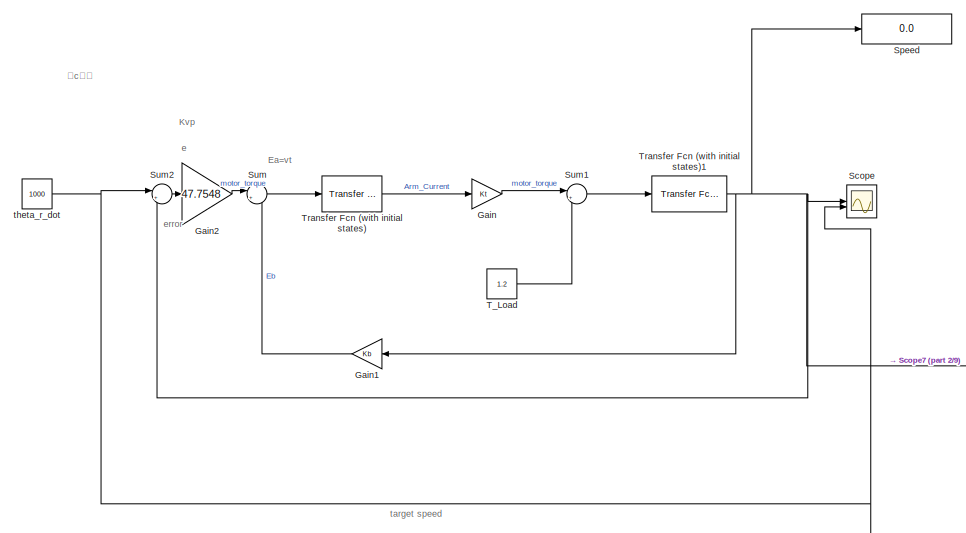
[diagram: root canvas - part 1/9, top left region]
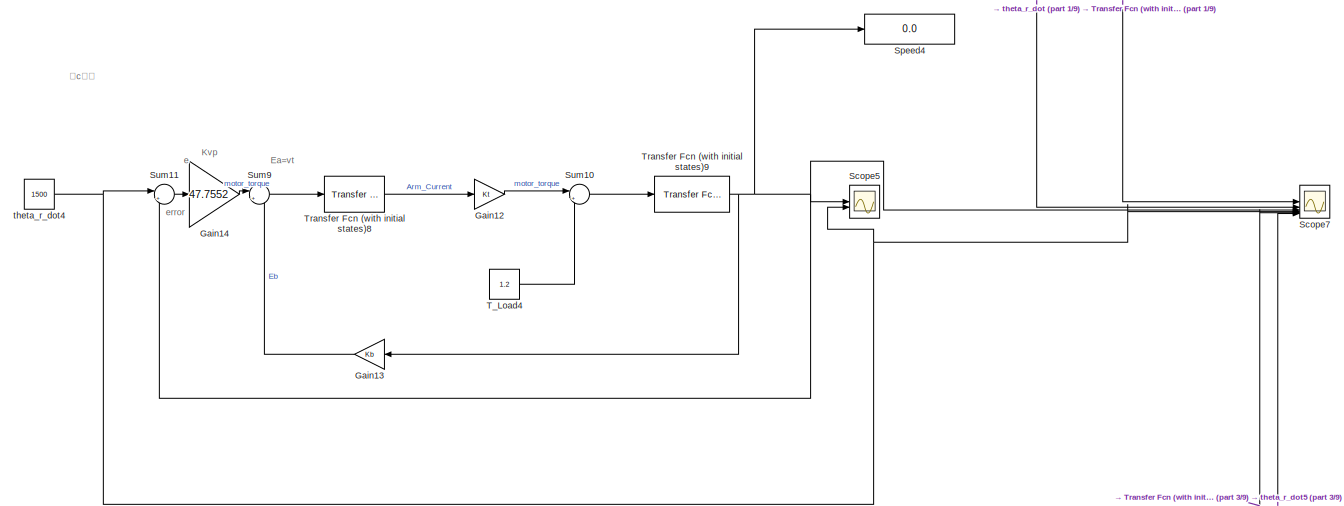
[diagram: root canvas - part 2/9, top left region]
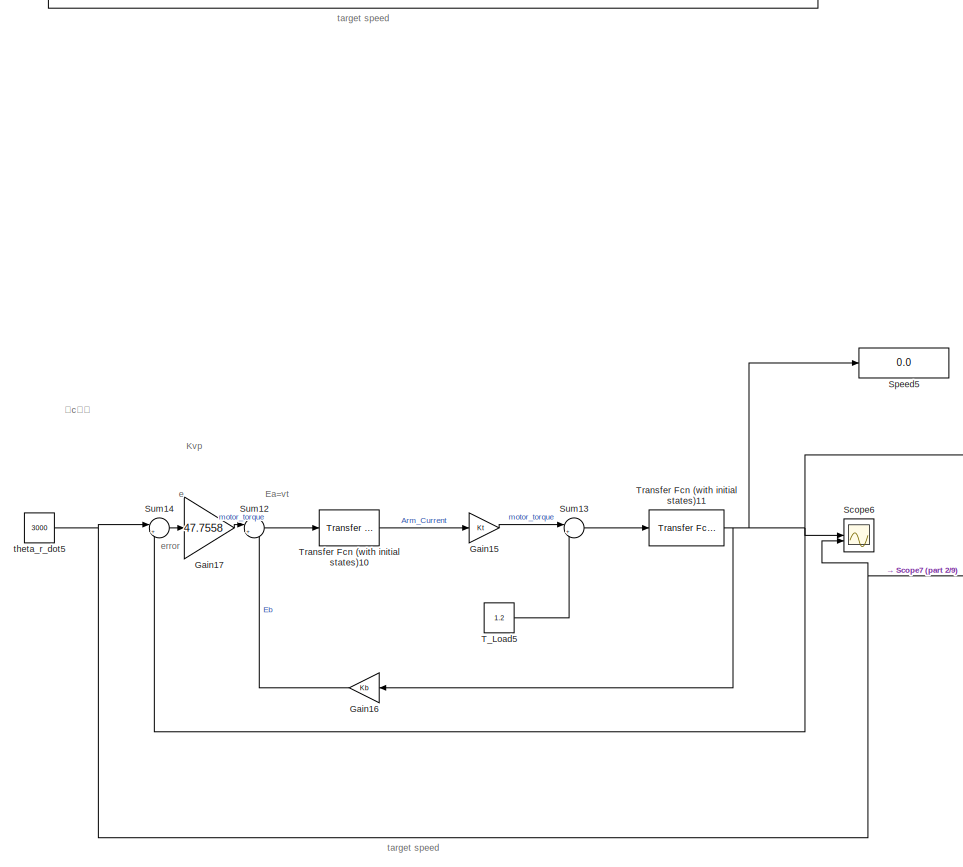
[diagram: root canvas - part 3/9, middle left region]
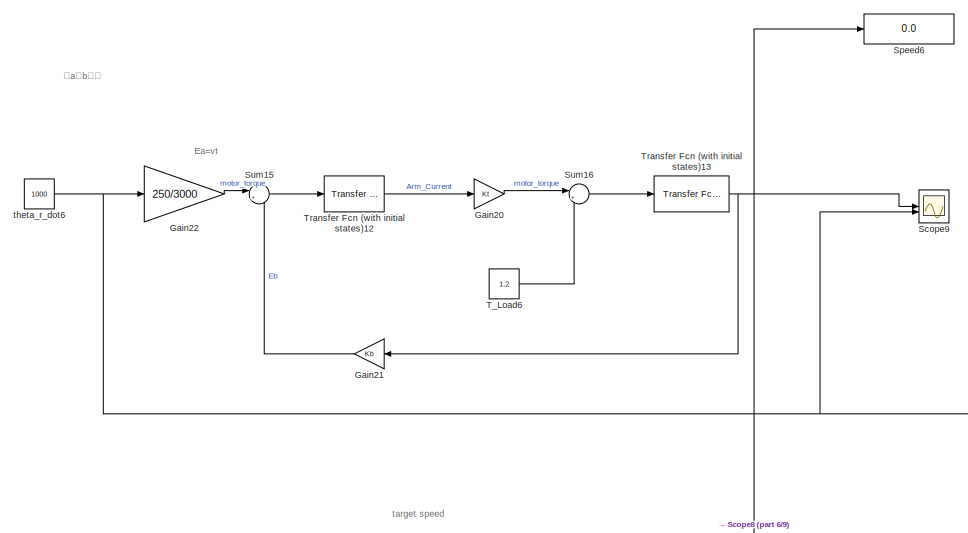
[diagram: root canvas - part 4/9, middle right region]
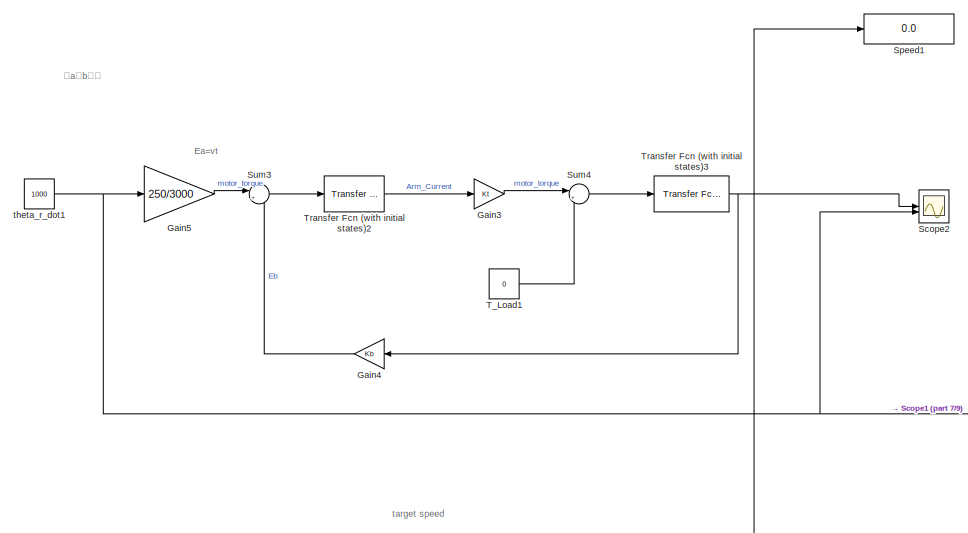
[diagram: root canvas - part 5/9, middle left region]
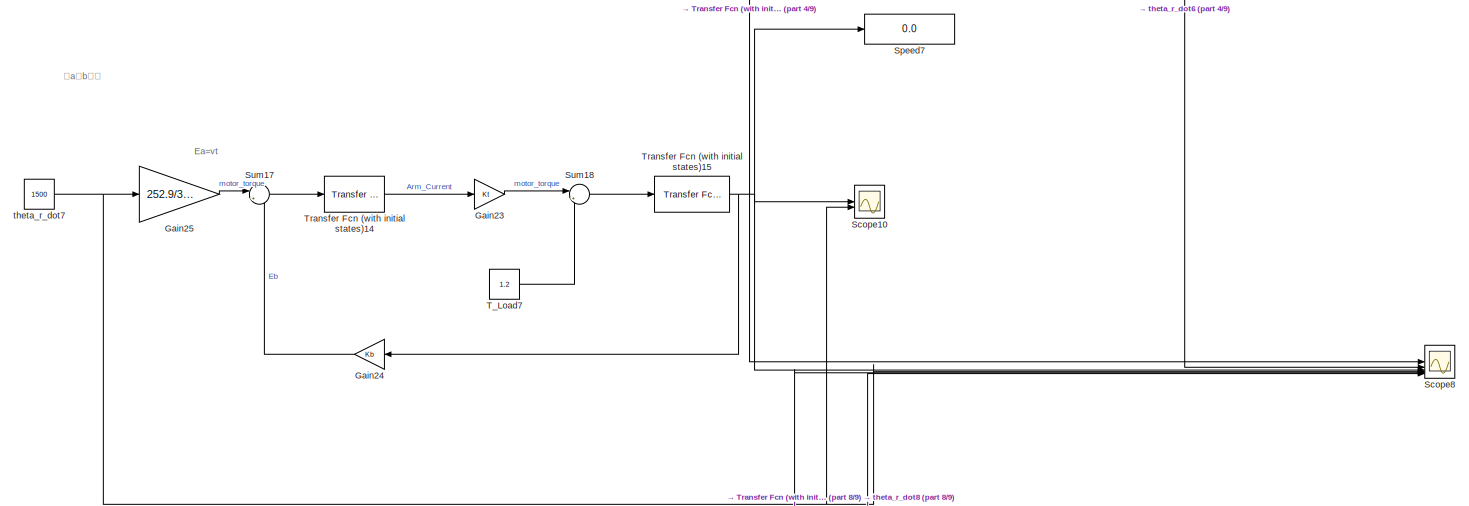
[diagram: root canvas - part 6/9, bottom right region]
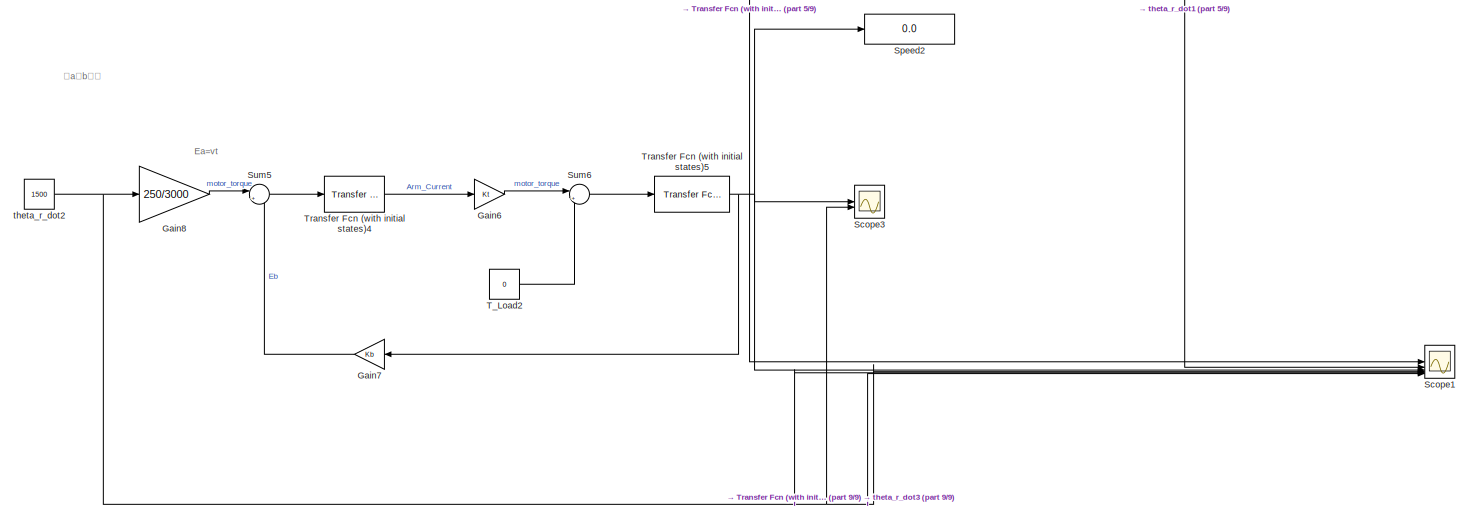
[diagram: root canvas - part 7/9, bottom left region]
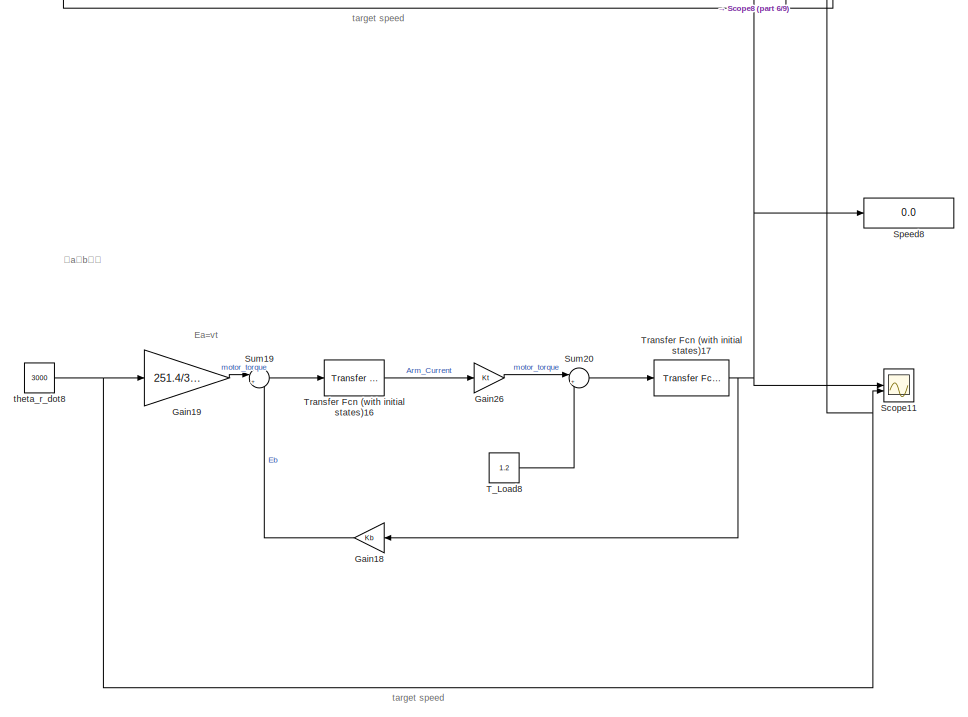
[diagram: root canvas - part 8/9, bottom right region]
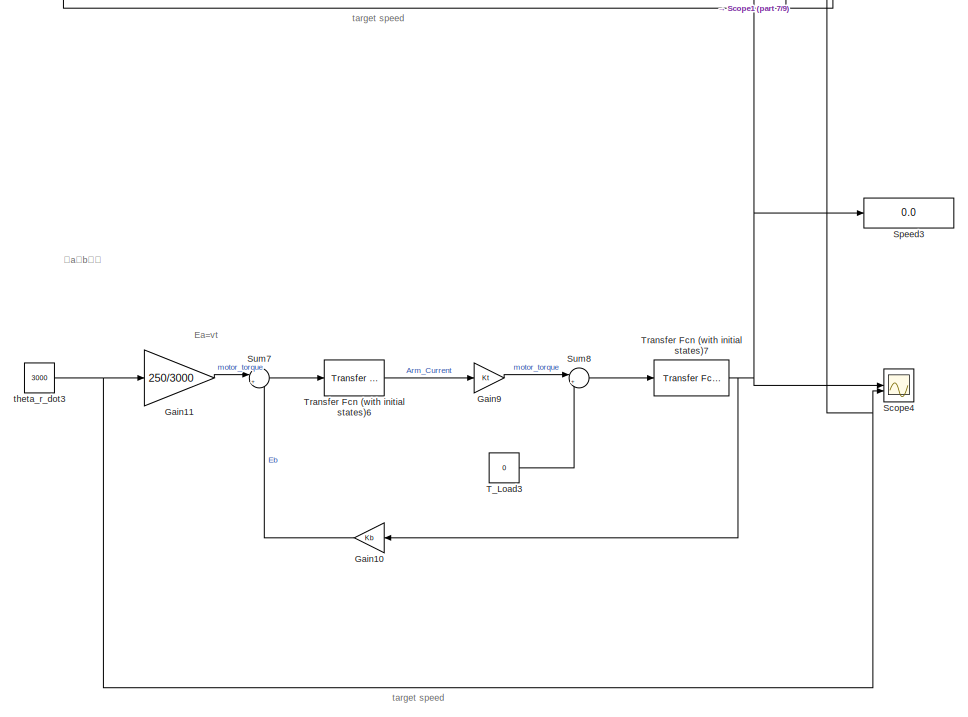
[diagram: root canvas - part 9/9, bottom left region]
MODEL slx_603999a579f1
KIND model
CONFIG AbsTol = auto
CONFIG EnableMultiTasking = off
CONFIG FixedStep = auto
CONFIG MaxStep = auto
CONFIG MinStep = auto
CONFIG RelTol = 1e-3
CONFIG SampleTimeConstraint = Unconstrained
CONFIG SolverName = VariableStepAuto
CONFIG StartTime = 0.0
CONFIG StopTime = 100
BLOCK [Gain] Gain
  Gain = Kt
BLOCK [Gain] Gain1
  Gain = Kb
  NameLocation = top
BLOCK [Gain] Gain10
  Gain = Kb
  NameLocation = top
BLOCK [Gain] Gain11
  Gain = 250/3000
BLOCK [Gain] Gain12
  Gain = Kt
BLOCK [Gain] Gain13
  Gain = Kb
  NameLocation = top
BLOCK [Gain] Gain14
  Gain = 47.7552
BLOCK [Gain] Gain15
  Gain = Kt
BLOCK [Gain] Gain16
  Gain = Kb
  NameLocation = top
BLOCK [Gain] Gain17
  Gain = 47.7558
BLOCK [Gain] Gain18
  Gain = Kb
  NameLocation = top
BLOCK [Gain] Gain19
  Gain = 251.4/3000
BLOCK [Gain] Gain2
  Gain = 47.7548
BLOCK [Gain] Gain20
  Gain = Kt
BLOCK [Gain] Gain21
  Gain = Kb
  NameLocation = top
BLOCK [Gain] Gain22
  Gain = 250/3000
BLOCK [Gain] Gain23
  Gain = Kt
BLOCK [Gain] Gain24
  Gain = Kb
  NameLocation = top
BLOCK [Gain] Gain25
  Gain = 252.9/3000
BLOCK [Gain] Gain26
  Gain = Kt
BLOCK [Gain] Gain3
  Gain = Kt
BLOCK [Gain] Gain4
  Gain = Kb
  NameLocation = top
BLOCK [Gain] Gain5
  Gain = 250/3000
BLOCK [Gain] Gain6
  Gain = Kt
BLOCK [Gain] Gain7
  Gain = Kb
  NameLocation = top
BLOCK [Gain] Gain8
  Gain = 250/3000
BLOCK [Gain] Gain9
  Gain = Kt
BLOCK [Scope] Scope
  Floating = off
  NumInputPorts = 2
  ScopeSpecificationString = Simulink.scopes.TimeScopeBlockCfg('CurrentConfiguration', extmgr.ConfigurationSet(extmgr.Configuration('Core','General UI',true,'FigureColor',[1 1 1]),extmgr.Configuration('Core','Source UI',true),extmgr.Configuration('Sources','WiredSimulink',true),extmgr.Configuration('Visuals','Time Domain',true,'TimeAxisLabels','All','SerializedDisplays',{struct('MinYLimReal','-104.96763','MaxYLimReal','1885.8...<+2592ch>
BLOCK [Scope] Scope1
  Floating = off
  NumInputPorts = 6
  ScopeSpecificationString = Simulink.scopes.TimeScopeBlockCfg('CurrentConfiguration', extmgr.ConfigurationSet(extmgr.Configuration('Core','General UI',true,'FigureColor',[1 1 1]),extmgr.Configuration('Core','Source UI',true),extmgr.Configuration('Sources','WiredSimulink',true,'DataLoggingVariableName','ScopeData1'),extmgr.Configuration('Visuals','Time Domain',true,'TimeAxisLabels','All','SerializedDisplays',{struct('MinYLimR...<+2956ch>
BLOCK [Scope] Scope10
  Floating = off
  NumInputPorts = 2
  ScopeSpecificationString = Simulink.scopes.TimeScopeBlockCfg('CurrentConfiguration', extmgr.ConfigurationSet(extmgr.Configuration('Core','General UI',true,'FigureColor',[1 1 1]),extmgr.Configuration('Core','Source UI',true),extmgr.Configuration('Sources','WiredSimulink',true,'DataLoggingVariableName','ScopeData8'),extmgr.Configuration('Visuals','Time Domain',true,'TimeAxisLabels','All','SerializedDisplays',{struct('MinYLimR...<+2842ch>
BLOCK [Scope] Scope11
  Floating = off
  NumInputPorts = 2
  ScopeSpecificationString = Simulink.scopes.TimeScopeBlockCfg('CurrentConfiguration', extmgr.ConfigurationSet(extmgr.Configuration('Core','General UI',true,'FigureColor',[1 1 1]),extmgr.Configuration('Core','Source UI',true),extmgr.Configuration('Sources','WiredSimulink',true,'DataLoggingVariableName','ScopeData9'),extmgr.Configuration('Visuals','Time Domain',true,'TimeAxisLabels','All','SerializedDisplays',{struct('MinYLimR...<+2842ch>
BLOCK [Scope] Scope2
  Floating = off
  NumInputPorts = 2
  ScopeSpecificationString = Simulink.scopes.TimeScopeBlockCfg('CurrentConfiguration', extmgr.ConfigurationSet(extmgr.Configuration('Core','General UI',true,'FigureColor',[1 1 1]),extmgr.Configuration('Core','Source UI',true),extmgr.Configuration('Sources','WiredSimulink',true,'DataLoggingVariableName','ScopeData2'),extmgr.Configuration('Visuals','Time Domain',true,'TimeAxisLabels','All','SerializedDisplays',{struct('MinYLimR...<+2815ch>
BLOCK [Scope] Scope3
  Floating = off
  NumInputPorts = 2
  ScopeSpecificationString = Simulink.scopes.TimeScopeBlockCfg('CurrentConfiguration', extmgr.ConfigurationSet(extmgr.Configuration('Core','General UI',true,'FigureColor',[1 1 1]),extmgr.Configuration('Core','Source UI',true),extmgr.Configuration('Sources','WiredSimulink',true,'DataLoggingVariableName','ScopeData3'),extmgr.Configuration('Visuals','Time Domain',true,'TimeAxisLabels','All','SerializedDisplays',{struct('MinYLimR...<+2811ch>
BLOCK [Scope] Scope4
  Floating = off
  NumInputPorts = 2
  ScopeSpecificationString = Simulink.scopes.TimeScopeBlockCfg('CurrentConfiguration', extmgr.ConfigurationSet(extmgr.Configuration('Core','General UI',true,'FigureColor',[1 1 1]),extmgr.Configuration('Core','Source UI',true),extmgr.Configuration('Sources','WiredSimulink',true,'DataLoggingVariableName','ScopeData4'),extmgr.Configuration('Visuals','Time Domain',true,'TimeAxisLabels','All','SerializedDisplays',{struct('MinYLimR...<+2813ch>
BLOCK [Scope] Scope5
  Floating = off
  NumInputPorts = 2
  ScopeSpecificationString = Simulink.scopes.TimeScopeBlockCfg('CurrentConfiguration', extmgr.ConfigurationSet(extmgr.Configuration('Core','General UI',true,'FigureColor',[1 1 1]),extmgr.Configuration('Core','Source UI',true),extmgr.Configuration('Sources','WiredSimulink',true,'DataLoggingVariableName','ScopeData5'),extmgr.Configuration('Visuals','Time Domain',true,'TimeAxisLabels','All','SerializedDisplays',{struct('MinYLimR...<+2660ch>
BLOCK [Scope] Scope6
  Floating = off
  NumInputPorts = 2
  ScopeSpecificationString = Simulink.scopes.TimeScopeBlockCfg('CurrentConfiguration', extmgr.ConfigurationSet(extmgr.Configuration('Core','General UI',true,'FigureColor',[1 1 1]),extmgr.Configuration('Core','Source UI',true),extmgr.Configuration('Sources','WiredSimulink',true,'DataLoggingVariableName','ScopeData6'),extmgr.Configuration('Visuals','Time Domain',true,'TimeAxisLabels','All','SerializedDisplays',{struct('MinYLimR...<+2656ch>
BLOCK [Scope] Scope7
  Floating = off
  NumInputPorts = 6
  ScopeSpecificationString = Simulink.scopes.TimeScopeBlockCfg('CurrentConfiguration', extmgr.ConfigurationSet(extmgr.Configuration('Core','General UI',true,'FigureColor',[1 1 1]),extmgr.Configuration('Core','Source UI',true),extmgr.Configuration('Sources','WiredSimulink',true,'DataLoggingVariableName','ScopeData7'),extmgr.Configuration('Visuals','Time Domain',true,'TimeAxisLabels','All','SerializedDisplays',{struct('MinYLimR...<+2929ch>
BLOCK [Scope] Scope8
  Floating = off
  NumInputPorts = 6
  ScopeSpecificationString = Simulink.scopes.TimeScopeBlockCfg('CurrentConfiguration', extmgr.ConfigurationSet(extmgr.Configuration('Core','General UI',true,'FigureColor',[1 1 1]),extmgr.Configuration('Core','Source UI',true),extmgr.Configuration('Sources','WiredSimulink',true,'DataLoggingVariableName','ScopeData10'),extmgr.Configuration('Visuals','Time Domain',true,'TimeAxisLabels','All','SerializedDisplays',{struct('MinYLim...<+2957ch>
BLOCK [Scope] Scope9
  Floating = off
  NumInputPorts = 2
  ScopeSpecificationString = Simulink.scopes.TimeScopeBlockCfg('CurrentConfiguration', extmgr.ConfigurationSet(extmgr.Configuration('Core','General UI',true,'FigureColor',[1 1 1]),extmgr.Configuration('Core','Source UI',true),extmgr.Configuration('Sources','WiredSimulink',true,'DataLoggingVariableName','ScopeData11'),extmgr.Configuration('Visuals','Time Domain',true,'TimeAxisLabels','All','SerializedDisplays',{struct('MinYLim...<+2837ch>
BLOCK [Display] Speed
  Decimation = 1
BLOCK [Display] Speed1
  Decimation = 1
BLOCK [Display] Speed2
  Decimation = 1
BLOCK [Display] Speed3
  Decimation = 1
BLOCK [Display] Speed4
  Decimation = 1
BLOCK [Display] Speed5
  Decimation = 1
BLOCK [Display] Speed6
  Decimation = 1
BLOCK [Display] Speed7
  Decimation = 1
BLOCK [Display] Speed8
  Decimation = 1
BLOCK [Sum] Sum
  Inputs = |+-
BLOCK [Sum] Sum1
  Inputs = |+-
BLOCK [Sum] Sum10
  Inputs = |+-
BLOCK [Sum] Sum11
  Inputs = |+-
BLOCK [Sum] Sum12
  Inputs = |+-
BLOCK [Sum] Sum13
  Inputs = |+-
BLOCK [Sum] Sum14
  Inputs = |+-
BLOCK [Sum] Sum15
  Inputs = |+-
BLOCK [Sum] Sum16
  Inputs = |+-
BLOCK [Sum] Sum17
  Inputs = |+-
BLOCK [Sum] Sum18
  Inputs = |+-
BLOCK [Sum] Sum19
  Inputs = |+-
BLOCK [Sum] Sum2
  Inputs = |+-
BLOCK [Sum] Sum20
  Inputs = |+-
BLOCK [Sum] Sum3
  Inputs = |+-
BLOCK [Sum] Sum4
  Inputs = |+-
BLOCK [Sum] Sum5
  Inputs = |+-
BLOCK [Sum] Sum6
  Inputs = |+-
BLOCK [Sum] Sum7
  Inputs = |+-
BLOCK [Sum] Sum8
  Inputs = |+-
BLOCK [Sum] Sum9
  Inputs = |+-
BLOCK [Constant] T_Load
  Value = 1.2
BLOCK [Constant] T_Load1
  Value = 0
BLOCK [Constant] T_Load2
  Value = 0
BLOCK [Constant] T_Load3
  Value = 0
BLOCK [Constant] T_Load4
  Value = 1.2
BLOCK [Constant] T_Load5
  Value = 1.2
BLOCK [Constant] T_Load6
  Value = 1.2
BLOCK [Constant] T_Load7
  Value = 1.2
BLOCK [Constant] T_Load8
  Value = 1.2
BLOCK [Reference] Transfer Fcn (with initial states)  REF=simulink_extras/Additional
Linear/Transfer Fcn
(with initial states)
  SourceBlock = simulink_extras/Additional\nLinear/Transfer Fcn\n(with initial states)
  SourceType = Transfer Function with Initial States
BLOCK [Reference] Transfer Fcn (with initial states)1  REF=simulink_extras/Additional
Linear/Transfer Fcn
(with initial states)
  SourceBlock = simulink_extras/Additional\nLinear/Transfer Fcn\n(with initial states)
  SourceType = Transfer Function with Initial States
BLOCK [Reference] Transfer Fcn (with initial states)10  REF=simulink_extras/Additional
Linear/Transfer Fcn
(with initial states)
  SourceBlock = simulink_extras/Additional\nLinear/Transfer Fcn\n(with initial states)
  SourceType = Transfer Function with Initial States
BLOCK [Reference] Transfer Fcn (with initial states)11  REF=simulink_extras/Additional
Linear/Transfer Fcn
(with initial states)
  SourceBlock = simulink_extras/Additional\nLinear/Transfer Fcn\n(with initial states)
  SourceType = Transfer Function with Initial States
BLOCK [Reference] Transfer Fcn (with initial states)12  REF=simulink_extras/Additional
Linear/Transfer Fcn
(with initial states)
  SourceBlock = simulink_extras/Additional\nLinear/Transfer Fcn\n(with initial states)
  SourceType = Transfer Function with Initial States
BLOCK [Reference] Transfer Fcn (with initial states)13  REF=simulink_extras/Additional
Linear/Transfer Fcn
(with initial states)
  SourceBlock = simulink_extras/Additional\nLinear/Transfer Fcn\n(with initial states)
  SourceType = Transfer Function with Initial States
BLOCK [Reference] Transfer Fcn (with initial states)14  REF=simulink_extras/Additional
Linear/Transfer Fcn
(with initial states)
  SourceBlock = simulink_extras/Additional\nLinear/Transfer Fcn\n(with initial states)
  SourceType = Transfer Function with Initial States
BLOCK [Reference] Transfer Fcn (with initial states)15  REF=simulink_extras/Additional
Linear/Transfer Fcn
(with initial states)
  SourceBlock = simulink_extras/Additional\nLinear/Transfer Fcn\n(with initial states)
  SourceType = Transfer Function with Initial States
BLOCK [Reference] Transfer Fcn (with initial states)16  REF=simulink_extras/Additional
Linear/Transfer Fcn
(with initial states)
  SourceBlock = simulink_extras/Additional\nLinear/Transfer Fcn\n(with initial states)
  SourceType = Transfer Function with Initial States
BLOCK [Reference] Transfer Fcn (with initial states)17  REF=simulink_extras/Additional
Linear/Transfer Fcn
(with initial states)
  SourceBlock = simulink_extras/Additional\nLinear/Transfer Fcn\n(with initial states)
  SourceType = Transfer Function with Initial States
BLOCK [Reference] Transfer Fcn (with initial states)2  REF=simulink_extras/Additional
Linear/Transfer Fcn
(with initial states)
  SourceBlock = simulink_extras/Additional\nLinear/Transfer Fcn\n(with initial states)
  SourceType = Transfer Function with Initial States
BLOCK [Reference] Transfer Fcn (with initial states)3  REF=simulink_extras/Additional
Linear/Transfer Fcn
(with initial states)
  SourceBlock = simulink_extras/Additional\nLinear/Transfer Fcn\n(with initial states)
  SourceType = Transfer Function with Initial States
BLOCK [Reference] Transfer Fcn (with initial states)4  REF=simulink_extras/Additional
Linear/Transfer Fcn
(with initial states)
  SourceBlock = simulink_extras/Additional\nLinear/Transfer Fcn\n(with initial states)
  SourceType = Transfer Function with Initial States
BLOCK [Reference] Transfer Fcn (with initial states)5  REF=simulink_extras/Additional
Linear/Transfer Fcn
(with initial states)
  SourceBlock = simulink_extras/Additional\nLinear/Transfer Fcn\n(with initial states)
  SourceType = Transfer Function with Initial States
BLOCK [Reference] Transfer Fcn (with initial states)6  REF=simulink_extras/Additional
Linear/Transfer Fcn
(with initial states)
  SourceBlock = simulink_extras/Additional\nLinear/Transfer Fcn\n(with initial states)
  SourceType = Transfer Function with Initial States
BLOCK [Reference] Transfer Fcn (with initial states)7  REF=simulink_extras/Additional
Linear/Transfer Fcn
(with initial states)
  SourceBlock = simulink_extras/Additional\nLinear/Transfer Fcn\n(with initial states)
  SourceType = Transfer Function with Initial States
BLOCK [Reference] Transfer Fcn (with initial states)8  REF=simulink_extras/Additional
Linear/Transfer Fcn
(with initial states)
  SourceBlock = simulink_extras/Additional\nLinear/Transfer Fcn\n(with initial states)
  SourceType = Transfer Function with Initial States
BLOCK [Reference] Transfer Fcn (with initial states)9  REF=simulink_extras/Additional
Linear/Transfer Fcn
(with initial states)
  SourceBlock = simulink_extras/Additional\nLinear/Transfer Fcn\n(with initial states)
  SourceType = Transfer Function with Initial States
BLOCK [Constant] theta_r_dot
  Value = 1000
BLOCK [Constant] theta_r_dot1
  Value = 1000
BLOCK [Constant] theta_r_dot2
  Value = 1500
BLOCK [Constant] theta_r_dot3
  Value = 3000
BLOCK [Constant] theta_r_dot4
  Value = 1500
BLOCK [Constant] theta_r_dot5
  Value = 3000
BLOCK [Constant] theta_r_dot6
  Value = 1000
BLOCK [Constant] theta_r_dot7
  Value = 1500
BLOCK [Constant] theta_r_dot8
  Value = 3000
ANNOTATION (root): target speed
ANNOTATION (root): Ea=vt
ANNOTATION (root): Kvp
ANNOTATION (root): e
ANNOTATION (root): error
ANNOTATION (root): 第a、b小題
ANNOTATION (root): 第c小題
LINE Gain10:1 -> Sum7:2
LINE Gain11:1 -> Sum7:1
LINE Gain12:1 -> Sum10:1
LINE Gain13:1 -> Sum9:2
LINE Gain14:1 -> Sum9:1
LINE Gain15:1 -> Sum13:1
LINE Gain16:1 -> Sum12:2
LINE Gain17:1 -> Sum12:1
LINE Gain18:1 -> Sum19:2
LINE Gain19:1 -> Sum19:1
LINE Gain1:1 -> Sum:2
LINE Gain20:1 -> Sum16:1
LINE Gain21:1 -> Sum15:2
LINE Gain22:1 -> Sum15:1
LINE Gain23:1 -> Sum18:1
LINE Gain24:1 -> Sum17:2
LINE Gain25:1 -> Sum17:1
LINE Gain26:1 -> Sum20:1
LINE Gain2:1 -> Sum:1
LINE Gain3:1 -> Sum4:1
LINE Gain4:1 -> Sum3:2
LINE Gain5:1 -> Sum3:1
LINE Gain6:1 -> Sum6:1
LINE Gain7:1 -> Sum5:2
LINE Gain8:1 -> Sum5:1
LINE Gain9:1 -> Sum8:1
LINE Gain:1 -> Sum1:1
LINE Sum10:1 -> Transfer Fcn (with initial states)9:1
LINE Sum11:1 -> Gain14:1
LINE Sum12:1 -> Transfer Fcn (with initial states)10:1
LINE Sum13:1 -> Transfer Fcn (with initial states)11:1
LINE Sum14:1 -> Gain17:1
LINE Sum15:1 -> Transfer Fcn (with initial states)12:1
LINE Sum16:1 -> Transfer Fcn (with initial states)13:1
LINE Sum17:1 -> Transfer Fcn (with initial states)14:1
LINE Sum18:1 -> Transfer Fcn (with initial states)15:1
LINE Sum19:1 -> Transfer Fcn (with initial states)16:1
LINE Sum1:1 -> Transfer Fcn (with initial states)1:1
LINE Sum20:1 -> Transfer Fcn (with initial states)17:1
LINE Sum2:1 -> Gain2:1
LINE Sum3:1 -> Transfer Fcn (with initial states)2:1
LINE Sum4:1 -> Transfer Fcn (with initial states)3:1
LINE Sum5:1 -> Transfer Fcn (with initial states)4:1
LINE Sum6:1 -> Transfer Fcn (with initial states)5:1
LINE Sum7:1 -> Transfer Fcn (with initial states)6:1
LINE Sum8:1 -> Transfer Fcn (with initial states)7:1
LINE Sum9:1 -> Transfer Fcn (with initial states)8:1
LINE Sum:1 -> Transfer Fcn (with initial states):1
LINE T_Load1:1 -> Sum4:2
LINE T_Load2:1 -> Sum6:2
LINE T_Load3:1 -> Sum8:2
LINE T_Load4:1 -> Sum10:2
LINE T_Load5:1 -> Sum13:2
LINE T_Load6:1 -> Sum16:2
LINE T_Load7:1 -> Sum18:2
LINE T_Load8:1 -> Sum20:2
LINE T_Load:1 -> Sum1:2
LINE Transfer Fcn (with initial states)10:1 -> Gain15:1
NET Transfer Fcn (with initial states)11:1 -> Gain16:1, Scope6:1, Scope7:5, Speed5:1, Sum14:2
LINE Transfer Fcn (with initial states)12:1 -> Gain20:1
NET Transfer Fcn (with initial states)13:1 -> Gain21:1, Scope8:1, Scope9:1, Speed6:1
LINE Transfer Fcn (with initial states)14:1 -> Gain23:1
NET Transfer Fcn (with initial states)15:1 -> Gain24:1, Scope10:1, Scope8:3, Speed7:1
LINE Transfer Fcn (with initial states)16:1 -> Gain26:1
NET Transfer Fcn (with initial states)17:1 -> Gain18:1, Scope11:1, Scope8:5, Speed8:1
NET Transfer Fcn (with initial states)1:1 -> Gain1:1, Scope7:1, Scope:1, Speed:1, Sum2:2
LINE Transfer Fcn (with initial states)2:1 -> Gain3:1
NET Transfer Fcn (with initial states)3:1 -> Gain4:1, Scope1:1, Scope2:1, Speed1:1
LINE Transfer Fcn (with initial states)4:1 -> Gain6:1
NET Transfer Fcn (with initial states)5:1 -> Gain7:1, Scope1:3, Scope3:1, Speed2:1
LINE Transfer Fcn (with initial states)6:1 -> Gain9:1
NET Transfer Fcn (with initial states)7:1 -> Gain10:1, Scope1:5, Scope4:1, Speed3:1
LINE Transfer Fcn (with initial states)8:1 -> Gain12:1
NET Transfer Fcn (with initial states)9:1 -> Gain13:1, Scope5:1, Scope7:3, Speed4:1, Sum11:2
LINE Transfer Fcn (with initial states):1 -> Gain:1
NET theta_r_dot1:1 -> Gain5:1, Scope1:2, Scope2:2
NET theta_r_dot2:1 -> Gain8:1, Scope1:4, Scope3:2
NET theta_r_dot3:1 -> Gain11:1, Scope1:6, Scope4:2
NET theta_r_dot4:1 -> Scope5:2, Scope7:4, Sum11:1
NET theta_r_dot5:1 -> Scope6:2, Scope7:6, Sum14:1
NET theta_r_dot6:1 -> Gain22:1, Scope8:2, Scope9:2
NET theta_r_dot7:1 -> Gain25:1, Scope10:2, Scope8:4
NET theta_r_dot8:1 -> Gain19:1, Scope11:2, Scope8:6
NET theta_r_dot:1 -> Scope7:2, Scope:2, Sum2:1
note: NET lines group one-source signal fan-out (src -> all destinations, sorted); 1:1 wires keep LINE
